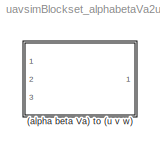
MODEL uavsimBlockset_alphabetaVa2uvw
KIND library
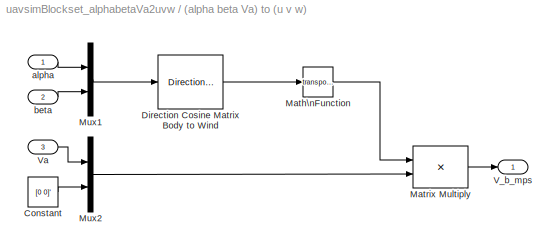
BLOCK [SubSystem] (alpha beta Va) to (u v w)
  Ports = [3, 1]
  RequestExecContextInheritance = off
  SID = 4326
BLOCK [Constant] (alpha beta Va) to (u v w)/Constant
  SID = 4335
  Value = [0 0]'
BLOCK [Reference] (alpha beta Va) to (u v w)/Direction Cosine Matrix Body to Wind  REF=aerolibtransform2/Direction Cosine Matrix\nBody to Wind
  Ports = [1, 1]
  SID = 4332
  SourceBlock = aerolibtransform2/Direction Cosine Matrix\nBody to Wind
  SourceType = DCM Body to Wind
BLOCK [Math] (alpha beta Va) to (u v w)/Math\nFunction
  Operator = transpose
  Ports = [1, 1]
  SID = 4428
BLOCK [Product] (alpha beta Va) to (u v w)/Matrix Multiply
  InputSameDT = off
  Multiplication = Matrix(*)
  OutDataTypeStr = Inherit: Inherit via internal rule
  Ports = [2, 1]
  RndMeth = Floor
  SID = 4336
  SaturateOnIntegerOverflow = off
BLOCK [Mux] (alpha beta Va) to (u v w)/Mux1
  DisplayOption = bar
  Inputs = 2
  Ports = [2, 1]
  SID = 4333
BLOCK [Mux] (alpha beta Va) to (u v w)/Mux2
  DisplayOption = bar
  Inputs = 2
  Ports = [2, 1]
  SID = 4334
BLOCK [Outport] (alpha beta Va) to (u v w)/V_b_mps
  IconDisplay = Port number
  SID = 4328
BLOCK [Inport] (alpha beta Va) to (u v w)/Va
  IconDisplay = Port number
  Port = 3
  SID = 4330
BLOCK [Inport] (alpha beta Va) to (u v w)/alpha
  IconDisplay = Port number
  SID = 4327
BLOCK [Inport] (alpha beta Va) to (u v w)/beta
  IconDisplay = Port number
  Port = 2
  SID = 4329
LINE (alpha beta Va) to (u v w)/Constant:1 -> (alpha beta Va) to (u v w)/Mux2:2
LINE (alpha beta Va) to (u v w)/Direction Cosine Matrix Body to Wind:1 -> (alpha beta Va) to (u v w)/Math\nFunction:1
LINE (alpha beta Va) to (u v w)/Math\nFunction:1 -> (alpha beta Va) to (u v w)/Matrix Multiply:1
LINE (alpha beta Va) to (u v w)/Matrix Multiply:1 -> (alpha beta Va) to (u v w)/V_b_mps:1
LINE (alpha beta Va) to (u v w)/Mux1:1 -> (alpha beta Va) to (u v w)/Direction Cosine Matrix Body to Wind:1
LINE (alpha beta Va) to (u v w)/Mux2:1 -> (alpha beta Va) to (u v w)/Matrix Multiply:2
LINE (alpha beta Va) to (u v w)/Va:1 -> (alpha beta Va) to (u v w)/Mux2:1
LINE (alpha beta Va) to (u v w)/alpha:1 -> (alpha beta Va) to (u v w)/Mux1:1
LINE (alpha beta Va) to (u v w)/beta:1 -> (alpha beta Va) to (u v w)/Mux1:2
